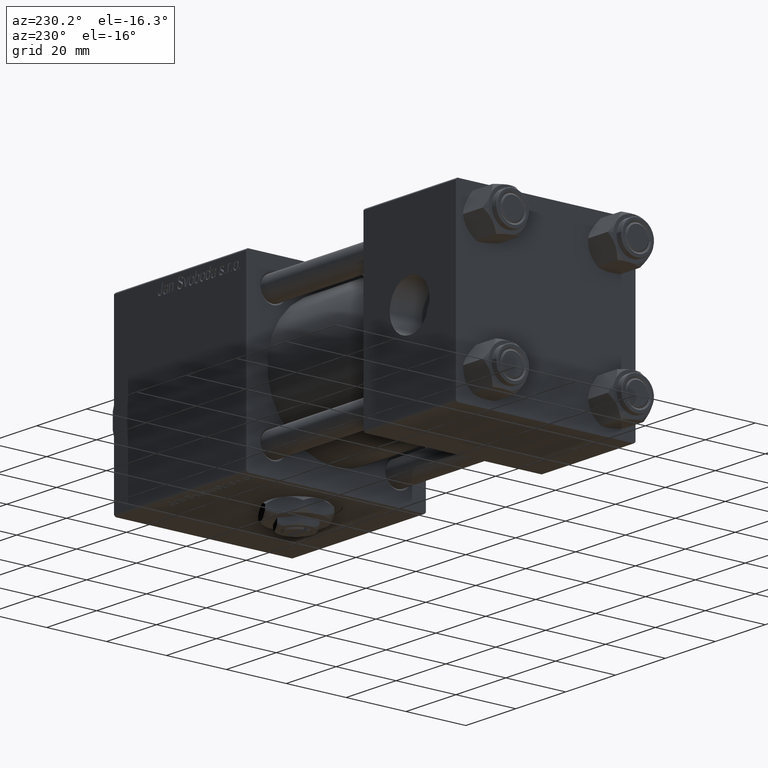
[diagram: clean part render]
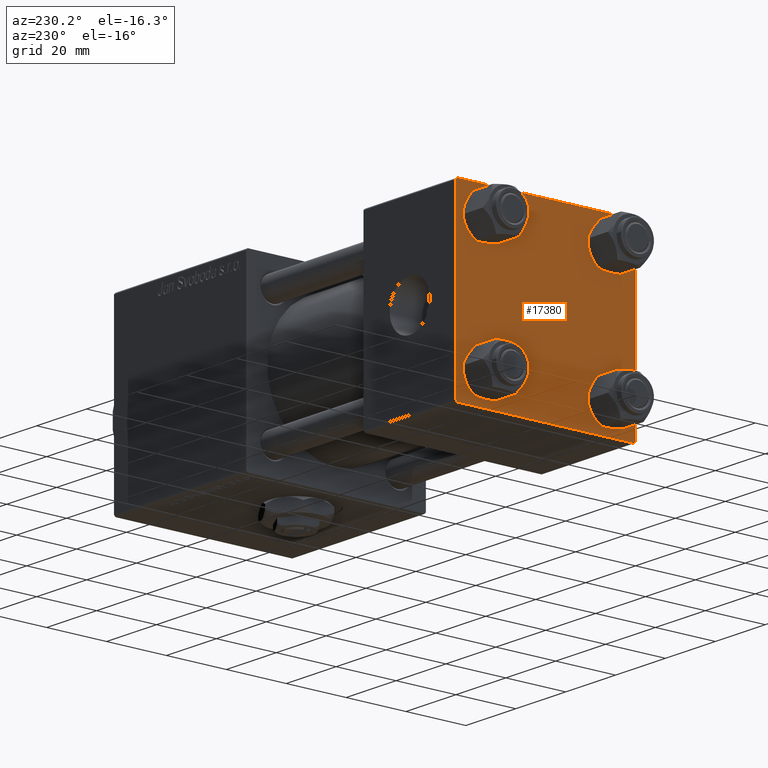
[diagram: same view with one face highlighted and labeled with its STEP entity id]
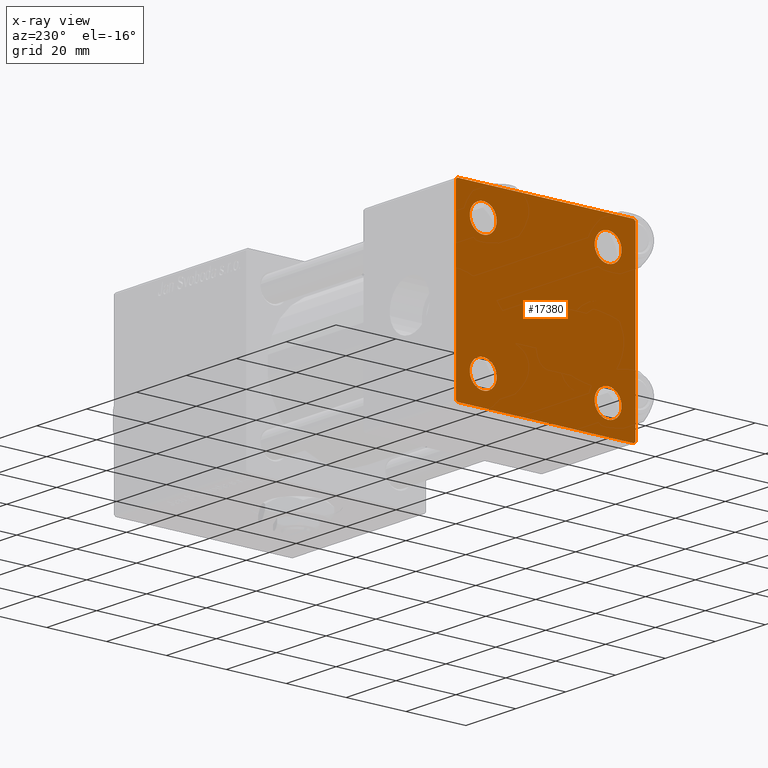
[diagram: x-ray of the same camera — body ghosted, the highlighted face saturated]
A machine part, auxiliary view. The second image highlights one B-rep face of the part: STEP entity #17380.
The next image is the same camera in x-ray: the body ghosted, the highlighted face saturated — about 0% of this face is hidden behind the body in this view.
In plain terms, the highlighted planar face has unit normal (-1, 0, 0).
Its self-contained STEP definition (entity closure, byte-faithful):
#1598 = EDGE_CURVE ( 'NONE', #58310, #47513, #54790, .T. ) ;
#1744 = DIRECTION ( 'NONE',  ( 0.000000000000000000, 0.000000000000000000, 1.000000000000000000 ) ) ;
#2208 = CARTESIAN_POINT ( 'NONE',  ( 0.000000000000000000, 20.84999999999999787, -20.85000000000000142 ) ) ;
#2220 = CIRCLE ( 'NONE', #48768, 4.500000000000017764 ) ;
#2369 = FACE_BOUND ( 'NONE', #42105, .T. ) ;
#2513 = CARTESIAN_POINT ( 'NONE',  ( 0.000000000000000000, -20.84999999999999076, -20.85000000000000497 ) ) ;
#2669 = CARTESIAN_POINT ( 'NONE',  ( 0.000000000000000000, 29.99999999999999289, -30.00000000000000000 ) ) ;
#3430 = VERTEX_POINT ( 'NONE', #31439 ) ;
#3872 = ORIENTED_EDGE ( 'NONE', *, *, #24487, .T. ) ;
#4026 = VERTEX_POINT ( 'NONE', #50859 ) ;
#4510 = ORIENTED_EDGE ( 'NONE', *, *, #58348, .F. ) ;
#5175 = DIRECTION ( 'NONE',  ( 0.000000000000000000, -1.000000000000000000, -1.156482317317871725E-16 ) ) ;
#5520 = ORIENTED_EDGE ( 'NONE', *, *, #53329, .F. ) ;
#5547 = DIRECTION ( 'NONE',  ( 0.000000000000000000, 0.000000000000000000, 1.000000000000000000 ) ) ;
#6258 = ORIENTED_EDGE ( 'NONE', *, *, #1598, .T. ) ;
#6736 = DIRECTION ( 'NONE',  ( 1.000000000000000000, -0.000000000000000000, 0.000000000000000000 ) ) ;
#7699 = VECTOR ( 'NONE', #41657, 1000.000000000000114 ) ;
#7840 = DIRECTION ( 'NONE',  ( 0.000000000000000000, 0.000000000000000000, 1.000000000000000000 ) ) ;
#7918 = DIRECTION ( 'NONE',  ( -0.000000000000000000, 0.000000000000000000, 1.000000000000000000 ) ) ;
#8496 = AXIS2_PLACEMENT_3D ( 'NONE', #2208, #48609, #7840 ) ;
#9543 = CARTESIAN_POINT ( 'NONE',  ( 0.000000000000000000, 20.84999999999999787, -16.34999999999998366 ) ) ;
#9780 = CIRCLE ( 'NONE', #48732, 4.500000000000017764 ) ;
#10605 = ORIENTED_EDGE ( 'NONE', *, *, #13941, .T. ) ;
#10750 = EDGE_CURVE ( 'NONE', #33556, #48992, #9780, .T. ) ;
#10980 = DIRECTION ( 'NONE',  ( 1.000000000000000000, -0.000000000000000000, 0.000000000000000000 ) ) ;
#11081 = VERTEX_POINT ( 'NONE', #34707 ) ;
#11355 = DIRECTION ( 'NONE',  ( 1.000000000000000000, -0.000000000000000000, 0.000000000000000000 ) ) ;
#11401 = DIRECTION ( 'NONE',  ( -0.000000000000000000, -0.7071067811865574537, -0.7071067811865376918 ) ) ;
#11791 = ORIENTED_EDGE ( 'NONE', *, *, #36436, .T. ) ;
#11852 = CARTESIAN_POINT ( 'NONE',  ( 0.000000000000000000, -20.84999999999999076, 25.35000000000002274 ) ) ;
#11902 = LINE ( 'NONE', #2669, #36186 ) ;
#12483 = VECTOR ( 'NONE', #54643, 1000.000000000000000 ) ;
#12804 = EDGE_CURVE ( 'NONE', #31564, #21136, #42358, .T. ) ;
#12864 = CARTESIAN_POINT ( 'NONE',  ( 0.000000000000000000, 29.99999999999999289, 29.50000000000000000 ) ) ;
#13263 = CIRCLE ( 'NONE', #8496, 4.500000000000017764 ) ;
#13277 = EDGE_CURVE ( 'NONE', #50077, #31200, #33616, .T. ) ;
#13321 = CARTESIAN_POINT ( 'NONE',  ( 0.000000000000000000, -30.00000000000000000, -29.50000000000001776 ) ) ;
#13941 = EDGE_CURVE ( 'NONE', #11081, #56027, #42297, .T. ) ;
#14430 = EDGE_LOOP ( 'NONE', ( #16541, #39490 ) ) ;
#14916 = ORIENTED_EDGE ( 'NONE', *, *, #19582, .T. ) ;
#15219 = DIRECTION ( 'NONE',  ( 0.000000000000000000, 0.000000000000000000, 1.000000000000000000 ) ) ;
#15454 = DIRECTION ( 'NONE',  ( -1.000000000000000000, 0.000000000000000000, -0.000000000000000000 ) ) ;
#15808 = CARTESIAN_POINT ( 'NONE',  ( 0.000000000000000000, 29.74999999999999645, 29.74999999999999645 ) ) ;
#16490 = VECTOR ( 'NONE', #55998, 1000.000000000000114 ) ;
#16541 = ORIENTED_EDGE ( 'NONE', *, *, #48619, .T. ) ;
#17380 = ADVANCED_FACE ( 'NONE', ( #29424, #29141, #48979, #2369, #33903 ), #53760, .T. ) ;
#17667 = CARTESIAN_POINT ( 'NONE',  ( 0.000000000000000000, 20.84999999999999787, 25.35000000000001918 ) ) ;
#19002 = LINE ( 'NONE', #24644, #21319 ) ;
#19582 = EDGE_CURVE ( 'NONE', #4026, #35653, #13263, .T. ) ;
#20398 = CIRCLE ( 'NONE', #44143, 4.500000000000017764 ) ;
#21136 = VERTEX_POINT ( 'NONE', #30076 ) ;
#21319 = VECTOR ( 'NONE', #33286, 1000.000000000000000 ) ;
#21446 = ORIENTED_EDGE ( 'NONE', *, *, #43588, .T. ) ;
#21936 = VERTEX_POINT ( 'NONE', #46761 ) ;
#23861 = ORIENTED_EDGE ( 'NONE', *, *, #45501, .T. ) ;
#24487 = EDGE_CURVE ( 'NONE', #21136, #21936, #11902, .T. ) ;
#24614 = EDGE_CURVE ( 'NONE', #21936, #44725, #31489, .T. ) ;
#24644 = CARTESIAN_POINT ( 'NONE',  ( 0.000000000000000000, 29.99999999999999289, 30.00000000000000000 ) ) ;
#24732 = CARTESIAN_POINT ( 'NONE',  ( 0.000000000000000000, -20.84999999999999076, 20.85000000000000497 ) ) ;
#24875 = CARTESIAN_POINT ( 'NONE',  ( 0.000000000000000000, -20.84999999999999076, 20.85000000000000497 ) ) ;
#26911 = AXIS2_PLACEMENT_3D ( 'NONE', #42513, #10980, #1744 ) ;
#26912 = CARTESIAN_POINT ( 'NONE',  ( 0.000000000000000000, -20.84999999999999076, -16.34999999999998721 ) ) ;
#27018 = DIRECTION ( 'NONE',  ( 0.000000000000000000, -0.7071067811865474617, 0.7071067811865474617 ) ) ;
#27226 = CARTESIAN_POINT ( 'NONE',  ( 0.000000000000000000, -30.00000000000000000, 29.99999999999999289 ) ) ;
#27855 = VECTOR ( 'NONE', #11401, 999.9999999999998863 ) ;
#27965 = CARTESIAN_POINT ( 'NONE',  ( -0.000000000000000000, -29.74999999999999645, 29.74999999999999645 ) ) ;
#29141 = FACE_BOUND ( 'NONE', #49627, .T. ) ;
#29415 = CARTESIAN_POINT ( 'NONE',  ( 0.000000000000000000, -20.84999999999999076, -20.85000000000000497 ) ) ;
#29424 = FACE_BOUND ( 'NONE', #14430, .T. ) ;
#29655 = DIRECTION ( 'NONE',  ( 0.000000000000000000, 0.000000000000000000, 1.000000000000000000 ) ) ;
#30006 = ORIENTED_EDGE ( 'NONE', *, *, #43978, .T. ) ;
#30022 = AXIS2_PLACEMENT_3D ( 'NONE', #24732, #11355, #15219 ) ;
#30076 = CARTESIAN_POINT ( 'NONE',  ( 0.000000000000000000, 29.49999999999997868, -30.00000000000000000 ) ) ;
#30296 = VERTEX_POINT ( 'NONE', #11852 ) ;
#30321 = DIRECTION ( 'NONE',  ( 0.000000000000000000, -1.000000000000000000, -1.156482317317871725E-16 ) ) ;
#30837 = LINE ( 'NONE', #27226, #12483 ) ;
#31200 = VERTEX_POINT ( 'NONE', #36038 ) ;
#31439 = CARTESIAN_POINT ( 'NONE',  ( 0.000000000000000000, -20.84999999999999076, 16.34999999999998721 ) ) ;
#31489 = LINE ( 'NONE', #40704, #43807 ) ;
#31564 = VERTEX_POINT ( 'NONE', #43322 ) ;
#32841 = LINE ( 'NONE', #54296, #58241 ) ;
#33286 = DIRECTION ( 'NONE',  ( 0.000000000000000000, 0.000000000000000000, -1.000000000000000000 ) ) ;
#33556 = VERTEX_POINT ( 'NONE', #33791 ) ;
#33616 = CIRCLE ( 'NONE', #26911, 4.500000000000017764 ) ;
#33791 = CARTESIAN_POINT ( 'NONE',  ( 0.000000000000000000, -20.84999999999999076, -25.35000000000002274 ) ) ;
#33903 = FACE_OUTER_BOUND ( 'NONE', #50831, .T. ) ;
#34345 = DIRECTION ( 'NONE',  ( 0.000000000000000000, 0.000000000000000000, 1.000000000000000000 ) ) ;
#34707 = CARTESIAN_POINT ( 'NONE',  ( 0.000000000000000000, 29.49999999999999289, 30.00000000000000000 ) ) ;
#34777 = DIRECTION ( 'NONE',  ( 0.000000000000000000, 0.000000000000000000, 1.000000000000000000 ) ) ;
#35346 = DIRECTION ( 'NONE',  ( 1.000000000000000000, -0.000000000000000000, 0.000000000000000000 ) ) ;
#35653 = VERTEX_POINT ( 'NONE', #9543 ) ;
#36038 = CARTESIAN_POINT ( 'NONE',  ( 0.000000000000000000, 20.84999999999999787, 16.34999999999998366 ) ) ;
#36186 = VECTOR ( 'NONE', #30321, 1000.000000000000000 ) ;
#36436 = EDGE_CURVE ( 'NONE', #48992, #33556, #2220, .T. ) ;
#37693 = DIRECTION ( 'NONE',  ( 0.000000000000000000, 0.000000000000000000, 1.000000000000000000 ) ) ;
#37979 = CARTESIAN_POINT ( 'NONE',  ( 0.000000000000000000, 20.84999999999999787, 20.85000000000000142 ) ) ;
#38799 = CARTESIAN_POINT ( 'NONE',  ( 0.000000000000000000, -29.49999999999998579, 29.99999999999999289 ) ) ;
#39490 = ORIENTED_EDGE ( 'NONE', *, *, #42827, .T. ) ;
#40704 = CARTESIAN_POINT ( 'NONE',  ( 0.000000000000000000, -29.75000000000001066, -29.75000000000001066 ) ) ;
#41321 = CIRCLE ( 'NONE', #56577, 4.500000000000017764 ) ;
#41657 = DIRECTION ( 'NONE',  ( -0.000000000000000000, 0.7071067811865474617, 0.7071067811865474617 ) ) ;
#42105 = EDGE_LOOP ( 'NONE', ( #49546, #30006 ) ) ;
#42297 = LINE ( 'NONE', #15808, #16490 ) ;
#42358 = LINE ( 'NONE', #56670, #27855 ) ;
#42513 = CARTESIAN_POINT ( 'NONE',  ( 0.000000000000000000, 20.84999999999999787, 20.85000000000000142 ) ) ;
#42827 = EDGE_CURVE ( 'NONE', #3430, #30296, #46933, .T. ) ;
#43065 = DIRECTION ( 'NONE',  ( 1.000000000000000000, -0.000000000000000000, 0.000000000000000000 ) ) ;
#43322 = CARTESIAN_POINT ( 'NONE',  ( 0.000000000000000000, 29.99999999999999289, -29.50000000000000000 ) ) ;
#43588 = EDGE_CURVE ( 'NONE', #56027, #31564, #19002, .T. ) ;
#43807 = VECTOR ( 'NONE', #27018, 1000.000000000000114 ) ;
#43978 = EDGE_CURVE ( 'NONE', #31200, #50077, #20398, .T. ) ;
#44143 = AXIS2_PLACEMENT_3D ( 'NONE', #37979, #46323, #5547 ) ;
#44528 = ORIENTED_EDGE ( 'NONE', *, *, #12804, .T. ) ;
#44725 = VERTEX_POINT ( 'NONE', #13321 ) ;
#45501 = EDGE_CURVE ( 'NONE', #35653, #4026, #41321, .T. ) ;
#46323 = DIRECTION ( 'NONE',  ( 1.000000000000000000, -0.000000000000000000, 0.000000000000000000 ) ) ;
#46517 = CARTESIAN_POINT ( 'NONE',  ( 0.000000000000000000, -30.00000000000000000, 29.49999999999999289 ) ) ;
#46761 = CARTESIAN_POINT ( 'NONE',  ( 0.000000000000000000, -29.50000000000000000, -30.00000000000000711 ) ) ;
#46933 = CIRCLE ( 'NONE', #58383, 4.500000000000017764 ) ;
#47513 = VERTEX_POINT ( 'NONE', #38799 ) ;
#48328 = DIRECTION ( 'NONE',  ( 1.000000000000000000, -0.000000000000000000, 0.000000000000000000 ) ) ;
#48609 = DIRECTION ( 'NONE',  ( 1.000000000000000000, -0.000000000000000000, 0.000000000000000000 ) ) ;
#48619 = EDGE_CURVE ( 'NONE', #30296, #3430, #55706, .T. ) ;
#48732 = AXIS2_PLACEMENT_3D ( 'NONE', #29415, #35346, #34777 ) ;
#48768 = AXIS2_PLACEMENT_3D ( 'NONE', #2513, #48328, #34345 ) ;
#48979 = FACE_BOUND ( 'NONE', #54404, .T. ) ;
#48992 = VERTEX_POINT ( 'NONE', #26912 ) ;
#49546 = ORIENTED_EDGE ( 'NONE', *, *, #13277, .T. ) ;
#49627 = EDGE_LOOP ( 'NONE', ( #11791, #51847 ) ) ;
#50077 = VERTEX_POINT ( 'NONE', #17667 ) ;
#50831 = EDGE_LOOP ( 'NONE', ( #21446, #44528, #3872, #55139, #5520, #6258, #4510, #10605 ) ) ;
#50859 = CARTESIAN_POINT ( 'NONE',  ( 0.000000000000000000, 20.84999999999999787, -25.35000000000001918 ) ) ;
#51847 = ORIENTED_EDGE ( 'NONE', *, *, #10750, .T. ) ;
#53329 = EDGE_CURVE ( 'NONE', #58310, #44725, #30837, .T. ) ;
#53760 = PLANE ( 'NONE',  #57850 ) ;
#54296 = CARTESIAN_POINT ( 'NONE',  ( 0.000000000000000000, 29.99999999999999289, 30.00000000000000000 ) ) ;
#54404 = EDGE_LOOP ( 'NONE', ( #23861, #14916 ) ) ;
#54643 = DIRECTION ( 'NONE',  ( 0.000000000000000000, 0.000000000000000000, -1.000000000000000000 ) ) ;
#54790 = LINE ( 'NONE', #27965, #7699 ) ;
#55139 = ORIENTED_EDGE ( 'NONE', *, *, #24614, .T. ) ;
#55706 = CIRCLE ( 'NONE', #30022, 4.500000000000017764 ) ;
#55998 = DIRECTION ( 'NONE',  ( 0.000000000000000000, 0.7071067811865474617, -0.7071067811865474617 ) ) ;
#56027 = VERTEX_POINT ( 'NONE', #12864 ) ;
#56556 = CARTESIAN_POINT ( 'NONE',  ( 0.000000000000000000, 0.000000000000000000, 0.000000000000000000 ) ) ;
#56577 = AXIS2_PLACEMENT_3D ( 'NONE', #57359, #43065, #29655 ) ;
#56670 = CARTESIAN_POINT ( 'NONE',  ( 0.000000000000000000, 29.74999999999957723, -29.75000000000040501 ) ) ;
#57359 = CARTESIAN_POINT ( 'NONE',  ( 0.000000000000000000, 20.84999999999999787, -20.85000000000000142 ) ) ;
#57850 = AXIS2_PLACEMENT_3D ( 'NONE', #56556, #15454, #7918 ) ;
#58241 = VECTOR ( 'NONE', #5175, 1000.000000000000000 ) ;
#58310 = VERTEX_POINT ( 'NONE', #46517 ) ;
#58348 = EDGE_CURVE ( 'NONE', #11081, #47513, #32841, .T. ) ;
#58383 = AXIS2_PLACEMENT_3D ( 'NONE', #24875, #6736, #37693 ) ;